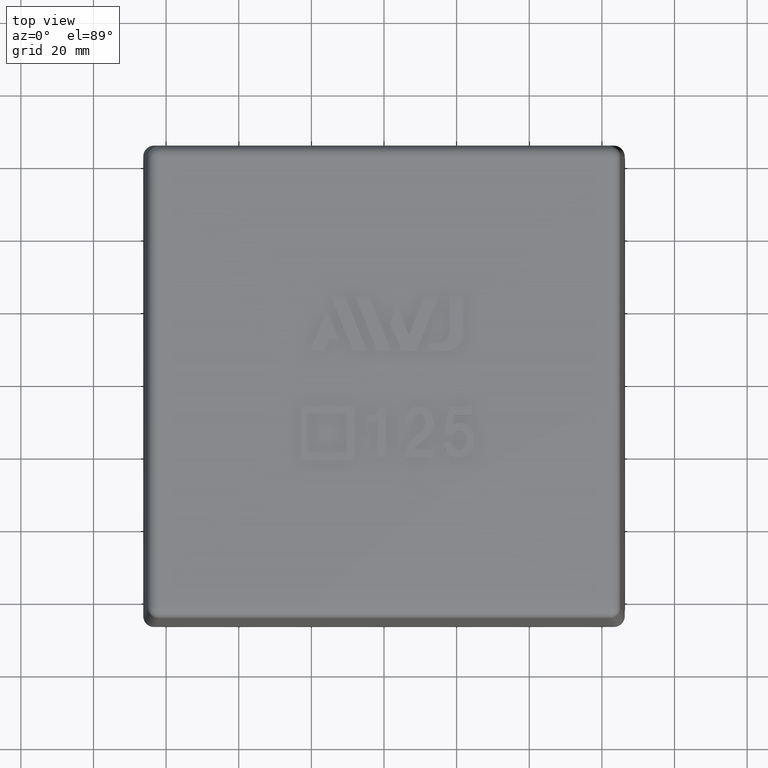
[diagram: clean part render]
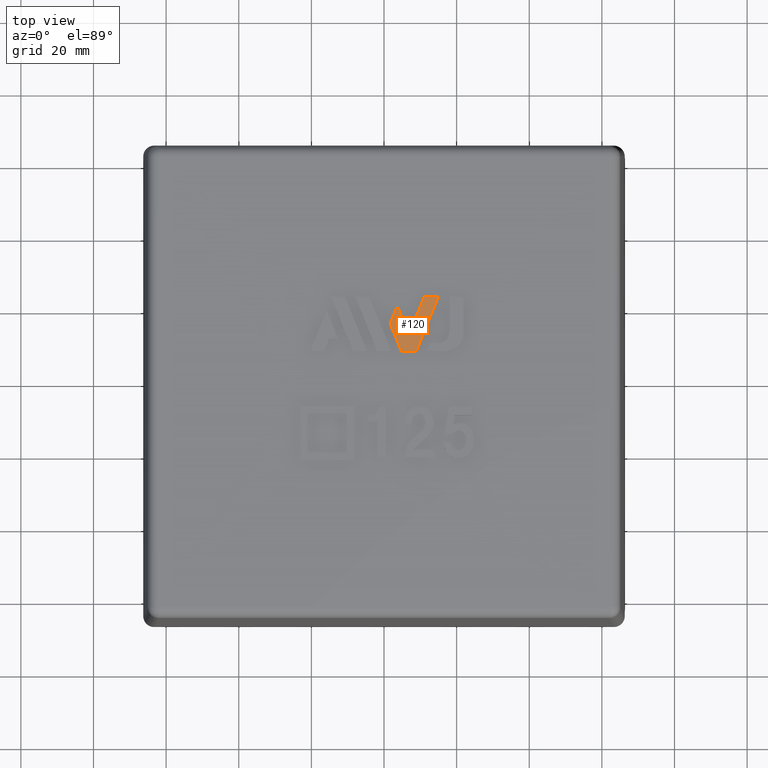
[diagram: same view with one face highlighted and labeled with its STEP entity id]
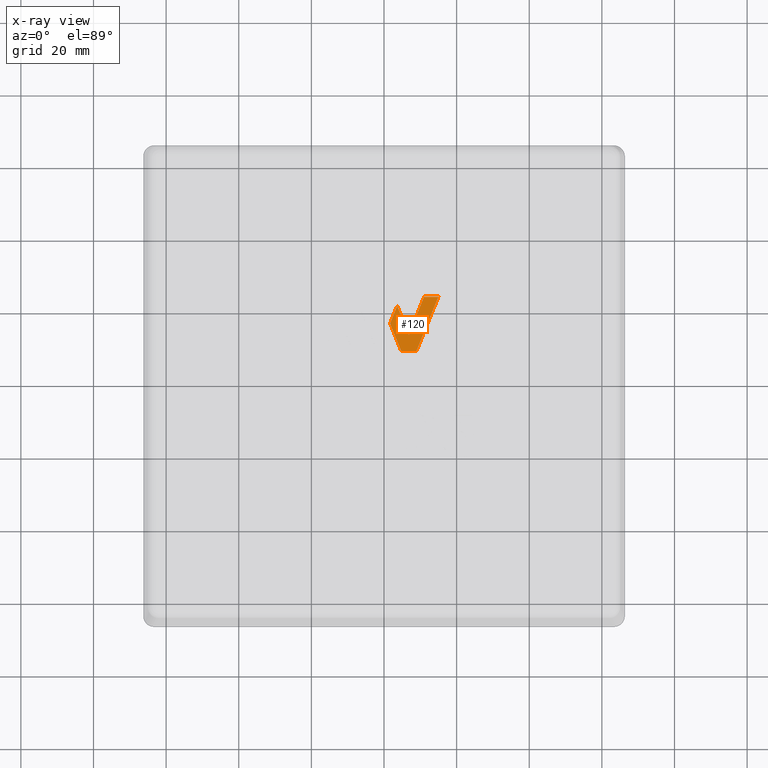
[diagram: x-ray of the same camera — body ghosted, the highlighted face saturated]
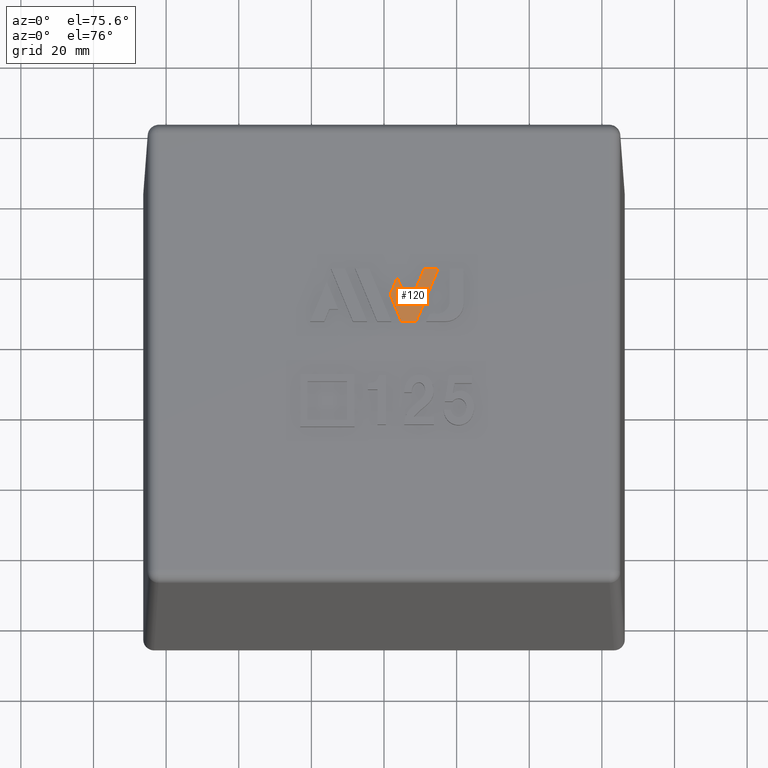
[diagram: same view with one face highlighted and labeled with its STEP entity id]
A machine part, top view. The second image highlights one B-rep face of the part: STEP entity #120.
The next image is the same camera in x-ray: the body ghosted, the highlighted face saturated — about 0% of this face is hidden behind the body in this view.
A second angle (auxiliary view) of the same face is appended — the face is thin or edge-on in the first view.
In plain terms, the highlighted planar face has unit normal (0, 0, 1).
Its self-contained STEP definition (entity closure, byte-faithful):
#120 = ADVANCED_FACE( '', ( #268 ), #269, .T. );
#268 = FACE_OUTER_BOUND( '', #467, .T. );
#269 = PLANE( '', #468 );
#467 = EDGE_LOOP( '', ( #970, #971, #972, #973, #974, #975, #976 ) );
#468 = AXIS2_PLACEMENT_3D( '', #977, #978, #979 );
#970 = ORIENTED_EDGE( '', *, *, #1480, .T. );
#971 = ORIENTED_EDGE( '', *, *, #1481, .T. );
#972 = ORIENTED_EDGE( '', *, *, #1482, .T. );
#973 = ORIENTED_EDGE( '', *, *, #1483, .T. );
#974 = ORIENTED_EDGE( '', *, *, #1484, .T. );
#975 = ORIENTED_EDGE( '', *, *, #1485, .T. );
#976 = ORIENTED_EDGE( '', *, *, #1486, .T. );
#977 = CARTESIAN_POINT( '', ( 530.231291427255, 205.538361598627, 73.5000000000000 ) );
#978 = DIRECTION( '', ( 0.000000000000000, 6.12303176911189E-017, 1.00000000000000 ) );
#979 = DIRECTION( '', ( -1.00000000000000, 0.000000000000000, 0.000000000000000 ) );
#1480 = EDGE_CURVE( '', #1810, #1811, #1812, .T. );
#1481 = EDGE_CURVE( '', #1811, #1813, #1814, .T. );
#1482 = EDGE_CURVE( '', #1813, #1815, #1816, .T. );
#1483 = EDGE_CURVE( '', #1815, #1817, #1818, .T. );
#1484 = EDGE_CURVE( '', #1817, #1819, #1820, .T. );
#1485 = EDGE_CURVE( '', #1819, #1821, #1822, .T. );
#1486 = EDGE_CURVE( '', #1821, #1810, #1823, .T. );
#1810 = VERTEX_POINT( '', #2450 );
#1811 = VERTEX_POINT( '', #2451 );
#1812 = LINE( '', #2452, #2453 );
#1813 = VERTEX_POINT( '', #2454 );
#1814 = LINE( '', #2455, #2456 );
#1815 = VERTEX_POINT( '', #2457 );
#1816 = LINE( '', #2458, #2459 );
#1817 = VERTEX_POINT( '', #2460 );
#1818 = LINE( '', #2461, #2462 );
#1819 = VERTEX_POINT( '', #2463 );
#1820 = LINE( '', #2464, #2465 );
#1821 = VERTEX_POINT( '', #2466 );
#1822 = LINE( '', #2467, #2468 );
#1823 = LINE( '', #2469, #2470 );
#2450 = CARTESIAN_POINT( '', ( 8.88223149499999, 8.35814999999999, 73.5000000000000 ) );
#2451 = CARTESIAN_POINT( '', ( 14.9409159900000, 23.3546711800000, 73.5000000000000 ) );
#2452 = CARTESIAN_POINT( '', ( 8.88223149499999, 8.35814999999999, 73.5000000000000 ) );
#2453 = VECTOR( '', #2747, 1000.00000000000 );
#2454 = CARTESIAN_POINT( '', ( 11.0656626650000, 23.3546711800000, 73.5000000000000 ) );
#2455 = CARTESIAN_POINT( '', ( 14.9409159900000, 23.3546711800000, 73.5000000000000 ) );
#2456 = VECTOR( '', #2748, 1000.00000000000 );
#2457 = CARTESIAN_POINT( '', ( 6.83355433500001, 12.8810653275000, 73.5000000000000 ) );
#2458 = CARTESIAN_POINT( '', ( 11.0656626650000, 23.3546711800000, 73.5000000000000 ) );
#2459 = VECTOR( '', #2749, 1000.00000000000 );
#2460 = CARTESIAN_POINT( '', ( 3.63593299000002, 20.7950903625000, 73.5000000000000 ) );
#2461 = CARTESIAN_POINT( '', ( 6.83355433500001, 12.8810653275000, 73.5000000000000 ) );
#2462 = VECTOR( '', #2750, 1000.00000000000 );
#2463 = CARTESIAN_POINT( '', ( 1.69830632750002, 15.9984565775000, 73.5000000000000 ) );
#2464 = CARTESIAN_POINT( '', ( 3.63593299000002, 20.7950903625000, 73.5000000000000 ) );
#2465 = VECTOR( '', #2751, 1000.00000000000 );
#2466 = CARTESIAN_POINT( '', ( 4.78572926750001, 8.35814999999999, 73.5000000000000 ) );
#2467 = CARTESIAN_POINT( '', ( 1.69830632750002, 15.9984565775000, 73.5000000000000 ) );
#2468 = VECTOR( '', #2752, 1000.00000000000 );
#2469 = CARTESIAN_POINT( '', ( 4.78572926750001, 8.35814999999999, 73.5000000000000 ) );
#2470 = VECTOR( '', #2753, 1000.00000000000 );
#2747 = DIRECTION( '', ( 0.374590469627020, 0.927190368837278, -5.67721608440522E-017 ) );
#2748 = DIRECTION( '', ( -1.00000000000000, 0.000000000000000, 0.000000000000000 ) );
#2749 = DIRECTION( '', ( -0.374644407000048, -0.927168575990139, 5.67708264610985E-017 ) );
#2750 = DIRECTION( '', ( -0.374621466961798, 0.927177845125405, -5.67713940131956E-017 ) );
#2751 = DIRECTION( '', ( -0.374550228315492, -0.927206625552694, 5.67731562479017E-017 ) );
#2752 = DIRECTION( '', ( 0.374662791989133, -0.927161146888127, 5.67703715748221E-017 ) );
#2753 = DIRECTION( '', ( 1.00000000000000, 5.55111512312578E-017, -3.39896542528966E-033 ) );